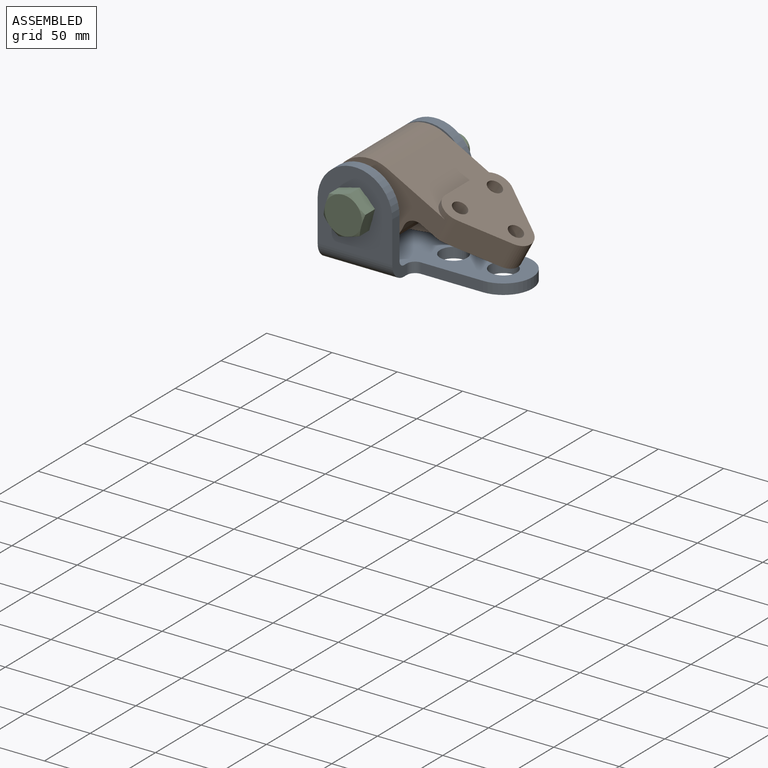
[diagram: assembled view]
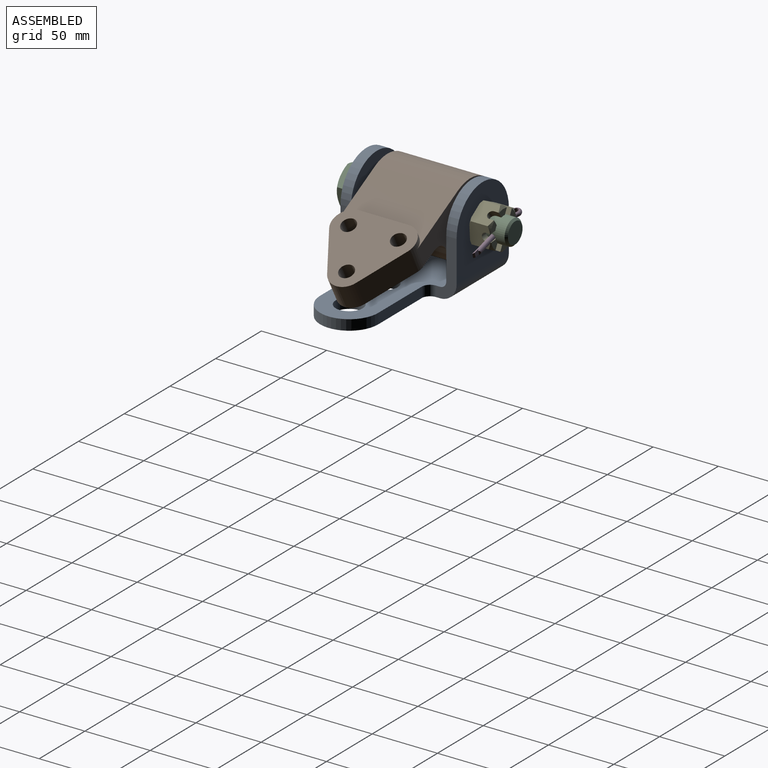
[diagram: assembled view, second angle]
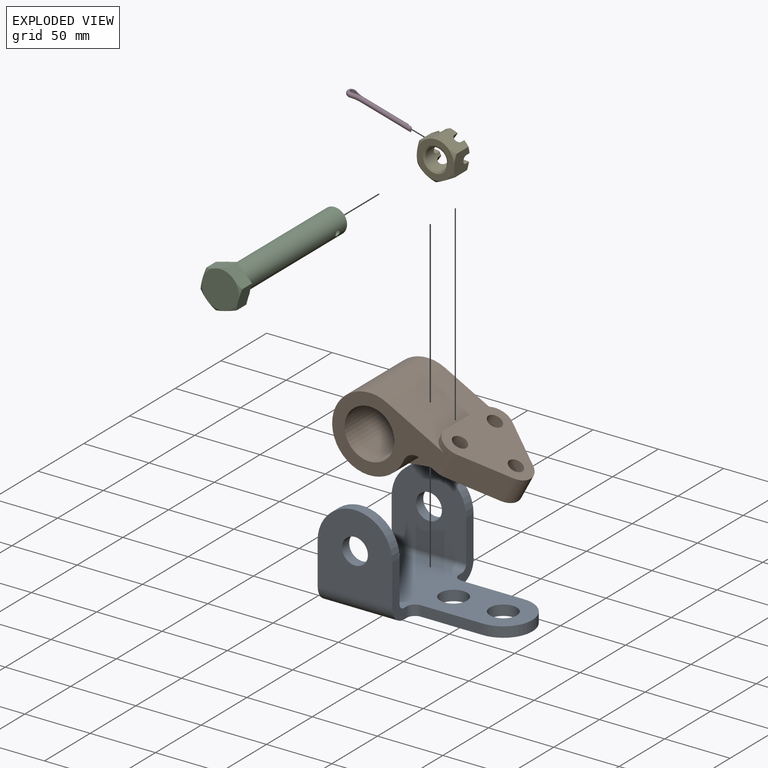
[diagram: exploded view]
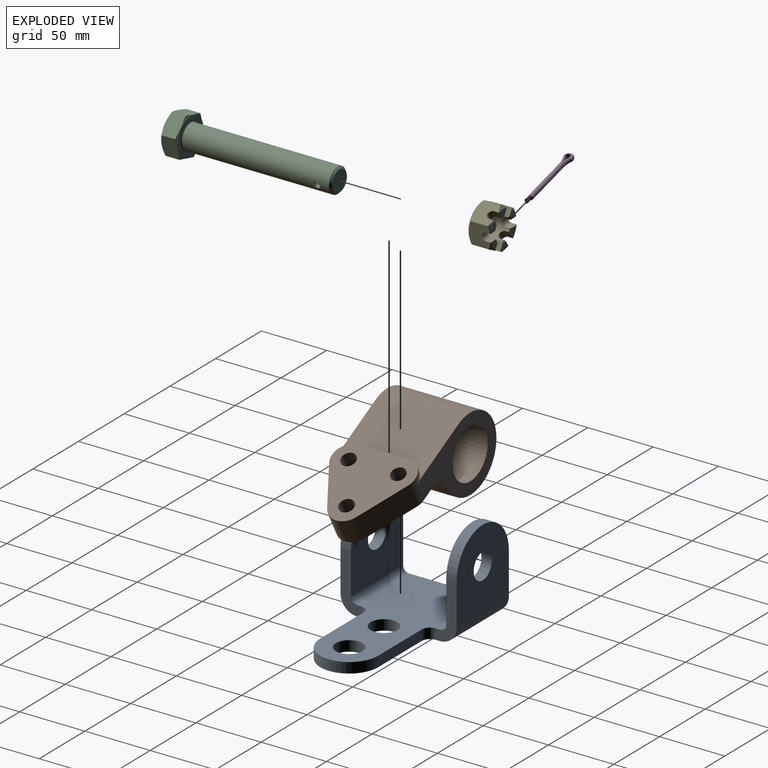
[diagram: exploded view, second angle]
ASSEMBLY  parts=5 mates=4
PART A: 24 faces, bbox 133.4x88.9x73 mm
  f0: plane 44.45x15.88mm, normal (1,0,0), area 386.1mm2, adj f8,f9,f11,f13,f14,f15,f21,f23
  f1: plane 47.63x7.94mm, normal (0,-1,0), area 378mm2, adj f2,f8,f9,f11
  f2: cylinder r=22.23mm len=44.45mm, axis (0,0,-1), area 554.2mm2, adj f1,f3,f8,f9
  f3: plane 47.63x7.94mm, normal (0,1,0), area 378mm2, adj f2,f8,f9,f10
  f4: plane 44.45x15.88mm, normal (1,0,0), area 386.1mm2, adj f8,f9,f10,f16,f18,f19,f20,f22
  f5: cylinder r=10.33mm len=20.65mm, axis (0,0,-1), area 514.9mm2, adj f8,f9
  f6: cylinder r=10.33mm len=20.65mm, axis (0,0,-1), area 514.9mm2, adj f8,f9
  f7: plane 88.9x44.45mm, normal (-1,0,0), area 1225.8mm2, adj f8,f9,f13,f14,f15,f16,f18,f19
  f8: plane 133.35x63.5mm, normal (0,0,1), area 6151.6mm2, adj f0,f1,f2,f3,f4,f5,f6,f7
  f9: plane 133.35x63.5mm, normal (0,0,-1), area 6151.6mm2, adj f0,f1,f2,f3,f4,f5,f6,f7
  f10: cylinder r=6.35mm len=7.94mm, axis (0,0,-1), area 79.2mm2, adj f3,f4,f8,f9
  f11: cylinder r=6.35mm len=7.94mm, axis (0,0,1), area 79.2mm2, adj f0,f1,f8,f9
  f12: cylinder r=9.92mm len=19.85mm, axis (0,1,0), area 494.9mm2, adj f14,f15
  f13: cylinder r=28.57mm len=57.15mm, axis (0,1,0), area 712.6mm2, adj f0,f7,f14,f15
  f14: plane 60.33x57.15mm, normal (0,-1,0), area 2787.8mm2, adj f0,f7,f12,f13,f21
  f15: plane 60.33x57.15mm, normal (0,1,0), area 2787.8mm2, adj f0,f7,f12,f13,f23
  f16: cylinder r=28.57mm len=57.15mm, axis (0,-1,0), area 712.6mm2, adj f4,f7,f18,f19
  f17: cylinder r=9.92mm len=19.85mm, axis (0,-1,0), area 494.9mm2, adj f18,f19
  f18: plane 60.33x57.15mm, normal (0,1,0), area 2787.8mm2, adj f4,f7,f16,f17,f20
  f19: plane 60.33x57.15mm, normal (0,-1,0), area 2787.8mm2, adj f4,f7,f16,f17,f22
  f20: cylinder r=12.7mm len=57.15mm, axis (1,0,0), area 1140.1mm2, adj f4,f7,f9,f18
  f21: cylinder r=12.7mm len=57.15mm, axis (-1,0,0), area 1140.1mm2, adj f0,f7,f9,f14
  f22: cylinder r=4.76mm len=57.15mm, axis (-1,0,0), area 427.5mm2, adj f4,f7,f8,f19
  f23: cylinder r=4.76mm len=57.15mm, axis (1,0,0), area 427.5mm2, adj f0,f7,f8,f15
PART B: 21 faces, bbox 125.4x63.5x61.9 mm
  f0: plane 63.5x58.88mm, normal (0,0,-1), area 2083.8mm2, adj f4,f5,f7,f8,f9,f10,f11,f12
  f1: cylinder r=28.57mm len=63.5mm, axis (0,1,0), area 8413.5mm2, adj f2,f4,f5,f16,f17,f18,f19,f20
  f2: plane 63.5x50.8mm, normal (0,0,1), area 2488.6mm2, adj f1,f4,f5,f6,f7,f8
  f3: cylinder r=19.05mm len=63.5mm, axis (0,1,0), area 7600.6mm2, adj f4,f5
  f4: plane 79.38x57.15mm, normal (0,-1,0), area 1971.2mm2, adj f0,f1,f2,f3,f7,f20
  f5: plane 79.38x57.15mm, normal (0,1,0), area 1971.2mm2, adj f0,f1,f2,f3,f8,f19
  f6: plane 38.1x4.78mm, normal (-1,0,0), area 181.9mm2, adj f2,f7,f8,f15
  f7: cylinder r=12.7mm len=20.65mm, axis (0,0,-1), area 231.4mm2, adj f0,f2,f4,f6,f10,f15
  f8: cylinder r=12.7mm len=20.65mm, axis (0,0,-1), area 231.4mm2, adj f0,f2,f5,f6,f9,f15
  f9: plane 33.35x20.65mm, normal (0.5,0.87,0), area 793.1mm2, adj f0,f8,f12,f15
  f10: plane 33.35x20.65mm, normal (0.5,-0.87,0), area 793.1mm2, adj f0,f7,f12,f15
  f11: cylinder r=5.56mm len=20.65mm, axis (0,0,-1), area 721.7mm2, adj f0,f15
  f12: cylinder r=12.7mm len=22.06mm, axis (0,0,-1), area 551.7mm2, adj f0,f9,f10,f15
  f13: cylinder r=5.56mm len=20.65mm, axis (0,0,-1), area 721.7mm2, adj f0,f15
  f14: cylinder r=5.56mm len=20.65mm, axis (0,0,-1), area 721.7mm2, adj f0,f15
  f15: plane 63.5x58.75mm, normal (0,0,1), area 2309.8mm2, adj f6,f7,f8,f9,f10,f11,f12,f13
  f16: plane 53.86x36.38mm, normal (0.56,0,-0.83), area 619mm2, adj f0,f1,f17,f18
  f17: plane 53.86x36.38mm, normal (0,-1,0), area 592.4mm2, adj f0,f1,f16,f20
  f18: plane 53.86x36.38mm, normal (0,1,0), area 592.4mm2, adj f0,f1,f16,f19
  f19: cylinder r=9.53mm len=26.99mm, axis (0,1,0), area 425.2mm2, adj f0,f1,f5,f18
  f20: cylinder r=9.53mm len=26.99mm, axis (0,1,0), area 425.2mm2, adj f0,f1,f4,f17
PART C: 26 faces, bbox 126.6x33x33 mm
  f0: plane 28.58x28.58mm, normal (1,0,0), area 325.1mm2, adj f10,f24
  f1: cylinder r=9.53mm len=112.28mm, axis (-1,0,0), area 6683.8mm2, adj f2,f24,f25
  f2: cone r=8.01mm half-angle=45deg, axis (-1,0,0), area 117.9mm2, adj f1,f3
  f3: plane 16.03x16.03mm, normal (1,0,0), area 201.7mm2, adj f2
  f4: plane 12.37x7.14mm, normal (1,0,0), area 11mm2, adj f10,f18,f23
  f5: plane 14.29x4.12mm, normal (1,0,0), area 11mm2, adj f10,f22,f23
  f6: plane 12.37x7.14mm, normal (1,0,0), area 11mm2, adj f10,f21,f22
  f7: plane 12.37x7.14mm, normal (1,0,0), area 11mm2, adj f10,f20,f21
  f8: plane 14.29x4.12mm, normal (1,0,0), area 11mm2, adj f10,f19,f20
  f9: plane 12.37x7.14mm, normal (1,0,0), area 11mm2, adj f10,f18,f19
  f10: cylinder r=14.29mm len=28.58mm, axis (-1,0,0), area 34.2mm2, adj f0,f4,f5,f6,f7,f8,f9
  f11: plane 28.58x28.58mm, normal (-1,0,0), area 641.3mm2, adj f12,f13,f14,f15,f16,f17
  f12: cone r=14.29mm half-angle=60deg, axis (1,0,0), area 12.7mm2, adj f11,f22,f23
  f13: cone r=14.29mm half-angle=60deg, axis (1,0,0), area 12.7mm2, adj f11,f21,f22
  f14: cone r=14.29mm half-angle=60deg, axis (1,0,0), area 12.7mm2, adj f11,f20,f21
  f15: cone r=14.29mm half-angle=60deg, axis (1,0,0), area 12.7mm2, adj f11,f19,f20
  f16: cone r=14.29mm half-angle=60deg, axis (1,0,0), area 12.7mm2, adj f11,f18,f23
  f17: cone r=14.29mm half-angle=60deg, axis (1,0,0), area 12.7mm2, adj f11,f18,f19
  f18: plane 16.51x11.89mm, normal (0,0,-1), area 188.9mm2, adj f4,f9,f16,f17,f19,f23
  f19: plane 14.29x11.89mm, normal (0,-0.87,-0.5), area 188.9mm2, adj f8,f9,f15,f17,f18,f20
  f20: plane 14.29x11.89mm, normal (0,-0.87,0.5), area 188.9mm2, adj f7,f8,f14,f15,f19,f21
  f21: plane 16.51x11.89mm, normal (0,0,1), area 188.9mm2, adj f6,f7,f13,f14,f20,f22
  f22: plane 14.29x11.89mm, normal (0,0.87,0.5), area 188.9mm2, adj f5,f6,f12,f13,f21,f23
  f23: plane 14.29x11.89mm, normal (0,0.87,-0.5), area 188.9mm2, adj f4,f5,f12,f16,f18,f22
  f24: torus R=10.03mm, axis (1,0,0), area 48.7mm2, adj f0,f1
  f25: cylinder r=2.38mm len=19.05mm, axis (0,0,1), area 285mm2, adj f1
PART D: 14 faces, bbox 52x8x3.7 mm
  f0: plane 38.67x3.7mm, normal (0,1,0), area 143.1mm2, adj f1,f2,f13
  f1: cylinder r=1.85mm len=40mm, axis (1,0,0), area 227.7mm2, adj f0,f3,f12,f13
  f2: cylinder r=16.37mm len=7.19mm, axis (0,0,-1), area 27.5mm2, adj f0,f3,f4
  f3: torus R=16.37mm, axis (0,0,-1), area 40.1mm2, adj f1,f2,f5
  f4: cylinder r=1.85mm len=3.7mm, axis (0,0,1), area 27.8mm2, adj f2,f5,f6
  f5: torus R=1.85mm, axis (0,0,1), area 71.2mm2, adj f3,f4,f7
  f6: cylinder r=16.37mm len=7.19mm, axis (0,0,-1), area 27.5mm2, adj f4,f7,f9
  f7: torus R=16.37mm, axis (0,0,-1), area 40.1mm2, adj f5,f6,f8
  f8: cylinder r=1.85mm len=36mm, axis (1,0,0), area 204.5mm2, adj f7,f9,f10,f11
  f9: plane 34.67x3.7mm, normal (0,-1,0), area 128.3mm2, adj f6,f8,f10
  f10: plane 3.7x1.33mm, normal (0.57,-0.82,0), area 5.7mm2, adj f8,f9,f11
  f11: plane 3.2x1.31mm, normal (0.58,0.82,0), area 3.6mm2, adj f8,f10
  f12: plane 3.2x1.31mm, normal (0.58,-0.82,0), area 3.6mm2, adj f1,f13
  f13: plane 3.7x1.33mm, normal (0.57,0.82,0), area 5.7mm2, adj f0,f1,f12
PART E: 64 faces, bbox 33x16.9x33 mm
  f0: cylinder r=8.33mm len=16.67mm, axis (0,-1,0), area 599.6mm2, adj f8,f9,f10,f11,f12,f13,f14,f15
  f1: plane 28.58x28.58mm, normal (0,1,0), area 356.3mm2, adj f32,f33,f34,f35,f36,f37,f51
  f2: plane 8.68x4.95mm, normal (0,-1,0), area 30mm2, adj f12,f16,f41,f48
  f3: plane 7.52x6.81mm, normal (0,-1,0), area 30mm2, adj f9,f13,f43,f49
  f4: plane 7.52x6.81mm, normal (0,-1,0), area 30mm2, adj f8,f18,f39,f44
  f5: plane 7.52x6.81mm, normal (0,-1,0), area 30mm2, adj f11,f15,f42,f46
  f6: plane 7.52x6.81mm, normal (0,-1,0), area 30mm2, adj f10,f17,f40,f47
  f7: plane 8.68x4.95mm, normal (0,-1,0), area 30mm2, adj f14,f19,f38,f45
  f8: plane 6.56x3.71mm, normal (0,0,-1), area 23.4mm2, adj f0,f4,f22,f26,f39,f44,f62,f63
  f9: plane 6.56x3.71mm, normal (0,0,1), area 23.4mm2, adj f0,f3,f22,f26,f43,f49,f52,f53
  f10: plane 6.56x3.71mm, normal (0,0,1), area 23.4mm2, adj f0,f6,f25,f27,f40,f47,f56,f57
  f11: plane 6.56x3.71mm, normal (0,0,-1), area 23.4mm2, adj f0,f5,f25,f27,f42,f46,f58,f59
  f12: plane 5.69x3.71mm, normal (0.87,0,0.5), area 23.4mm2, adj f0,f2,f23,f28,f41,f48,f54,f55
  f13: plane 5.69x3.71mm, normal (-0.87,0,-0.5), area 23.4mm2, adj f0,f3,f23,f28,f43,f49,f52,f53
  f14: plane 5.69x3.71mm, normal (-0.87,0,-0.5), area 23.4mm2, adj f0,f7,f20,f29,f38,f45,f60,f61
  f15: plane 5.69x3.71mm, normal (0.87,0,0.5), area 23.4mm2, adj f0,f5,f20,f29,f42,f46,f58,f59
  f16: plane 5.69x3.71mm, normal (-0.87,0,0.5), area 23.4mm2, adj f0,f2,f24,f30,f41,f48,f54,f55
  f17: plane 5.69x3.71mm, normal (0.87,0,-0.5), area 23.4mm2, adj f0,f6,f24,f30,f40,f47,f56,f57
  f18: plane 5.69x3.71mm, normal (-0.87,0,0.5), area 23.4mm2, adj f0,f4,f21,f31,f39,f44,f62,f63
  f19: plane 5.69x3.71mm, normal (0.87,0,-0.5), area 23.4mm2, adj f0,f7,f21,f31,f38,f45,f60,f61
  f20: plane 16.62x14.29mm, normal (-0.5,0,0.87), area 220.6mm2, adj f14,f15,f21,f25,f29,f32,f33,f38
  f21: plane 16.62x14.29mm, normal (0.5,0,0.87), area 220.6mm2, adj f18,f19,f20,f22,f31,f33,f34,f38
  f22: plane 16.63x16.51mm, normal (1,0,0), area 220.6mm2, adj f8,f9,f21,f23,f26,f34,f35,f39
  f23: plane 16.62x14.29mm, normal (0.5,0,-0.87), area 220.6mm2, adj f12,f13,f22,f24,f28,f35,f36,f41
  f24: plane 16.62x14.29mm, normal (-0.5,0,-0.87), area 220.6mm2, adj f16,f17,f23,f25,f30,f36,f37,f40
  f25: plane 16.63x16.51mm, normal (-1,0,0), area 220.6mm2, adj f10,f11,f20,f24,f27,f32,f37,f40
  f26: cylinder r=3.05mm len=6.53mm, axis (1,0,0), area 59.8mm2, adj f0,f8,f9,f22
  f27: cylinder r=3.05mm len=6.53mm, axis (1,0,0), area 59.8mm2, adj f0,f10,f11,f25
  f28: cylinder r=3.05mm len=8.7mm, axis (-0.5,0,0.87), area 59.8mm2, adj f0,f12,f13,f23
  f29: cylinder r=3.05mm len=8.7mm, axis (-0.5,0,0.87), area 59.8mm2, adj f0,f14,f15,f20
  f30: cylinder r=3.05mm len=8.7mm, axis (0.5,0,0.87), area 59.8mm2, adj f0,f16,f17,f24
  f31: cylinder r=3.05mm len=8.7mm, axis (0.5,0,0.87), area 59.8mm2, adj f0,f18,f19,f21
  f32: cone r=14.29mm half-angle=49.2deg, axis (0,-1,0), area 14.5mm2, adj f1,f20,f25
  f33: cone r=14.29mm half-angle=49.2deg, axis (0,-1,0), area 14.5mm2, adj f1,f20,f21
  f34: cone r=14.29mm half-angle=49.2deg, axis (0,-1,0), area 14.5mm2, adj f1,f21,f22
  f35: cone r=14.29mm half-angle=49.2deg, axis (0,-1,0), area 14.5mm2, adj f1,f22,f23
  f36: cone r=14.29mm half-angle=49.2deg, axis (0,-1,0), area 14.5mm2, adj f1,f23,f24
  f37: cone r=14.29mm half-angle=49.2deg, axis (0,-1,0), area 14.5mm2, adj f1,f24,f25
  f38: cone r=14.29mm half-angle=49.2deg, axis (0,1,0), area 13.6mm2, adj f7,f14,f19,f20,f21
  f39: cone r=14.29mm half-angle=49.2deg, axis (0,1,0), area 13.6mm2, adj f4,f8,f18,f21,f22
  f40: cone r=14.29mm half-angle=49.2deg, axis (0,1,0), area 13.6mm2, adj f6,f10,f17,f24,f25
  f41: cone r=14.29mm half-angle=49.2deg, axis (0,1,0), area 13.6mm2, adj f2,f12,f16,f23,f24
  f42: cone r=14.29mm half-angle=49.2deg, axis (0,1,0), area 13.6mm2, adj f5,f11,f15,f20,f25
  f43: cone r=14.29mm half-angle=49.2deg, axis (0,1,0), area 13.6mm2, adj f3,f9,f13,f22,f23
  f44: cone r=8.21mm half-angle=55deg, axis (0,-1,0), area 0.1mm2, adj f4,f8,f18,f63
  f45: cone r=8.21mm half-angle=55deg, axis (0,-1,0), area 0.1mm2, adj f7,f14,f19,f60
  f46: cone r=8.21mm half-angle=55deg, axis (0,-1,0), area 0.1mm2, adj f5,f11,f15,f58
  f47: cone r=8.21mm half-angle=55deg, axis (0,-1,0), area 0.1mm2, adj f6,f10,f17,f56
  f48: cone r=8.21mm half-angle=55deg, axis (0,-1,0), area 0.1mm2, adj f2,f12,f16,f54
  f49: cone r=8.21mm half-angle=55deg, axis (0,-1,0), area 0.1mm2, adj f3,f9,f13,f52
  f50: cone r=9.53mm half-angle=55deg, axis (0,1,0), area 81.6mm2, adj f0,f51
  f51: cylinder r=9.53mm len=19.05mm, axis (0,-1,0), area 1.5mm2, adj f1,f50
  f52: cone r=9.53mm half-angle=55deg, axis (0,1,0), area 0.1mm2, adj f9,f13,f49,f53
  f53: cone r=8.33mm half-angle=55deg, axis (0,-1,0), area 4.5mm2, adj f0,f9,f13,f52
  f54: cone r=9.53mm half-angle=55deg, axis (0,1,0), area 0.1mm2, adj f12,f16,f48,f55
  f55: cone r=8.33mm half-angle=55deg, axis (0,-1,0), area 4.5mm2, adj f0,f12,f16,f54
  f56: cone r=9.53mm half-angle=55deg, axis (0,1,0), area 0.1mm2, adj f10,f17,f47,f57
  f57: cone r=8.33mm half-angle=55deg, axis (0,-1,0), area 4.5mm2, adj f0,f10,f17,f56
  f58: cone r=9.53mm half-angle=55deg, axis (0,1,0), area 0.1mm2, adj f11,f15,f46,f59
  f59: cone r=8.33mm half-angle=55deg, axis (0,-1,0), area 4.5mm2, adj f0,f11,f15,f58
  f60: cone r=9.53mm half-angle=55deg, axis (0,1,0), area 0.1mm2, adj f14,f19,f45,f61
  f61: cone r=8.33mm half-angle=55deg, axis (0,-1,0), area 4.5mm2, adj f0,f14,f19,f60
  f62: cone r=8.33mm half-angle=55deg, axis (0,-1,0), area 4.5mm2, adj f0,f8,f18,f63
  f63: cone r=9.53mm half-angle=55deg, axis (0,1,0), area 0.1mm2, adj f8,f18,f44,f62
PLACE A t=(-66.15,-22.23,-7.07)mm fixed
PLACE B rot(axis=(0,1,0),28deg) t=(-110.6,12.7,37.38)mm
PLACE C rot(axis=(-0.52,-0.52,0.68),111.5deg) t=(-110.6,-79.45,37.38)mm
PLACE D rot(axis=(0,1,0),15.5deg) t=(-127.6,36,42.09)mm
PLACE E rot(axis=(-1,0,0.03),180deg) t=(-110.6,38.25,37.38)mm
MATE cylindrical B.f1 <-> A.f16  axis (0,1,0) through (-110.6,-50.8,37.38)mm
MATE slider C.f25 <-> D.f8  axis (-0.96,0,0.27) through (-119.89,36,39.95)mm
MATE revolute C.f1 <-> A.f12  axis (0,-1,0) through (-110.6,-66.68,37.38)mm
MATE revolute A.f12 <-> E.f0  axis (0,1,0) through (-110.6,22.22,37.38)mm
